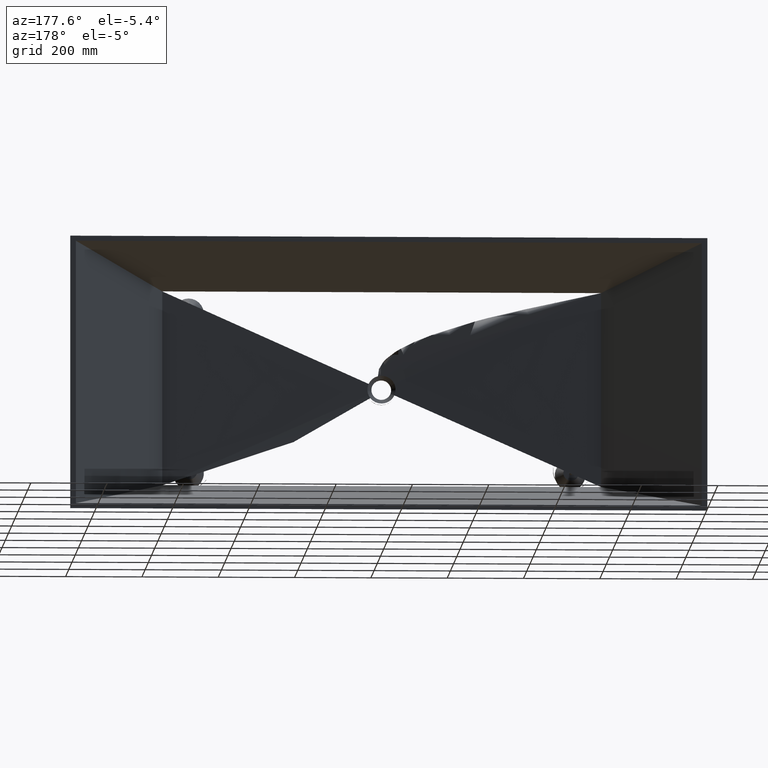
[diagram: clean part render]
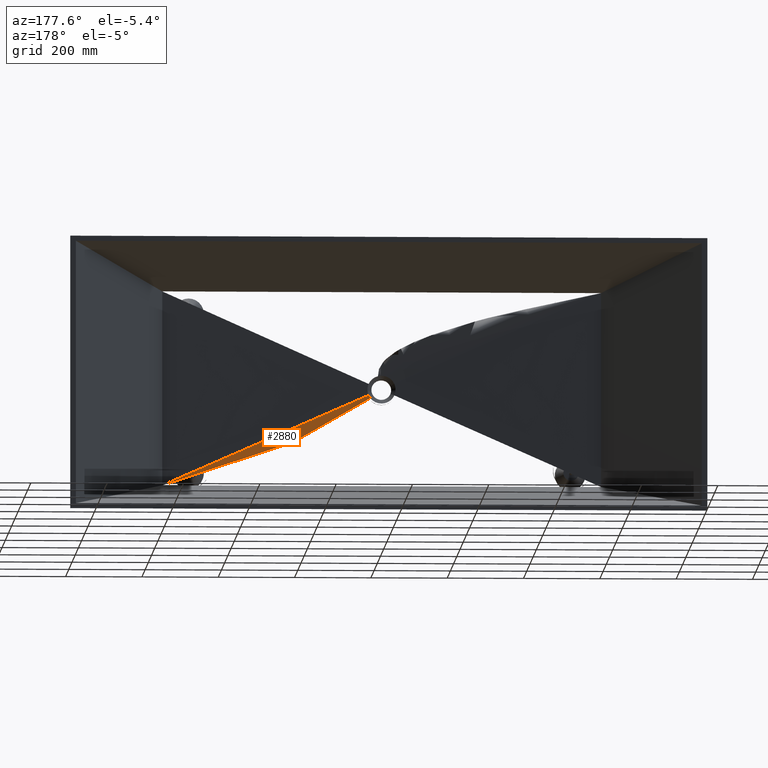
[diagram: same view with one face highlighted and labeled with its STEP entity id]
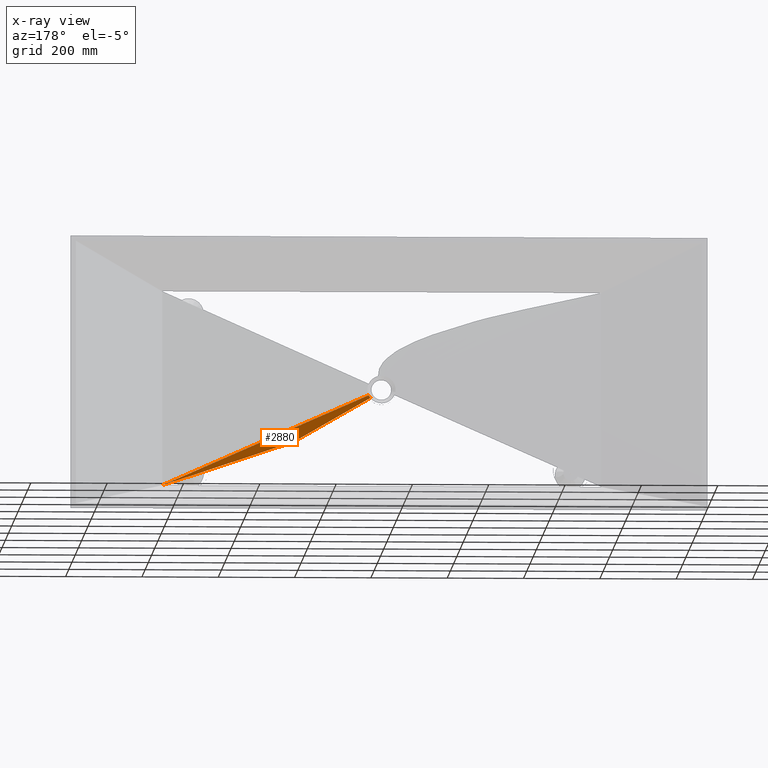
[diagram: x-ray of the same camera — body ghosted, the highlighted face saturated]
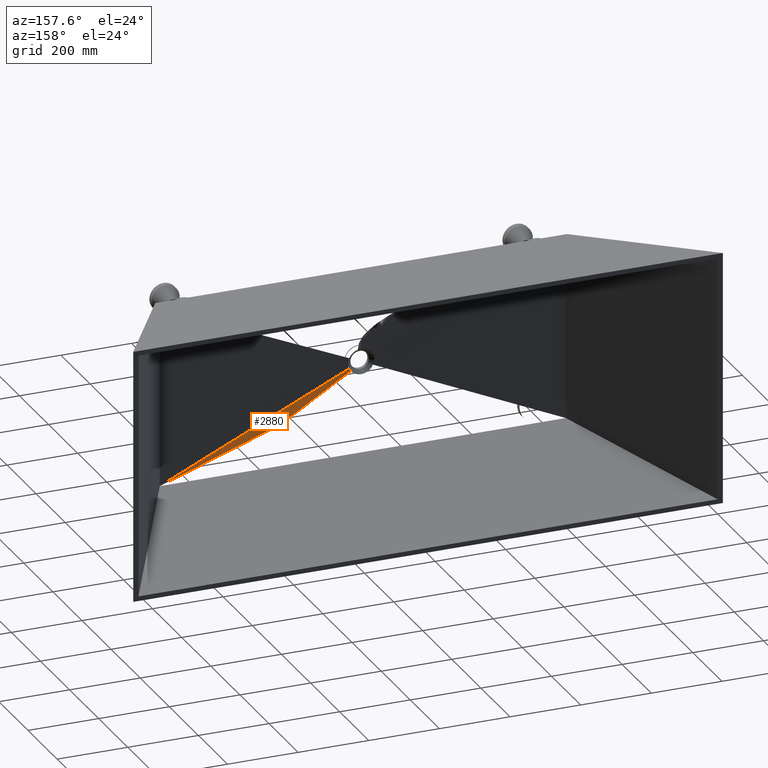
[diagram: same view with one face highlighted and labeled with its STEP entity id]
A machine part, auxiliary view. The second image highlights one B-rep face of the part: STEP entity #2880.
The next image is the same camera in x-ray: the body ghosted, the highlighted face saturated — about 0% of this face is hidden behind the body in this view.
A second angle (auxiliary view) of the same face is appended — the face is thin or edge-on in the first view.
In plain terms, the highlighted face is a freeform B-spline surface patch.
Its self-contained STEP definition (entity closure, byte-faithful):
#3 = VECTOR ( 'NONE', #7055, 1000.000000000000000 ) ;
#19 = CARTESIAN_POINT ( 'NONE',  ( 839.7902275691624300, -460.0000000000000600, -361.9009708081633200 ) ) ;
#36 = CARTESIAN_POINT ( 'NONE',  ( 1227.291666666668300, -448.0000000000000600, -599.9999999999996600 ) ) ;
#57 = CARTESIAN_POINT ( 'NONE',  ( 786.2661255632756400, -459.7831348520603600, -359.9437656676186100 ) ) ;
#84 = CARTESIAN_POINT ( 'NONE',  ( 786.4764197097281300, -459.7798139022385700, -360.4085599740050200 ) ) ;
#106 = CARTESIAN_POINT ( 'NONE',  ( 786.6960176936523800, -459.7762995391044600, -360.8684162147919800 ) ) ;
#127 = CARTESIAN_POINT ( 'NONE',  ( 787.7946876061801000, -459.7591575171467200, -363.0508660667292700 ) ) ;
#140 = CARTESIAN_POINT ( 'NONE',  ( 1246.710059227381200, -447.3986584636401700, -611.9315696683340800 ) ) ;
#151 = CARTESIAN_POINT ( 'NONE',  ( 788.8214790106709400, -459.7434923425655600, -364.7392265563996100 ) ) ;
#162 = CARTESIAN_POINT ( 'NONE',  ( 791.1022078576938800, -459.7097688032841300, -367.8857734826957000 ) ) ;
#167 = CARTESIAN_POINT ( 'NONE',  ( 839.0077442516670800, -459.9999999999999400, -362.7811239151816400 ) ) ;
#178 = CARTESIAN_POINT ( 'NONE',  ( 792.3577529762272900, -459.6914987369373800, -369.3553894277317800 ) ) ;
#191 = CARTESIAN_POINT ( 'NONE',  ( 795.0876168921823800, -459.6526312391480400, -372.0842114639852400 ) ) ;
#194 = CARTESIAN_POINT ( 'NONE',  ( 1203.333333333334800, -448.0000000000000600, -599.9999999999996600 ) ) ;
#263 = LINE ( 'NONE', #3039, #3 ) ;
#282 = CARTESIAN_POINT ( 'NONE',  ( 1221.590342456133800, -447.3986584636401700, -611.8874636165335200 ) ) ;
#303 = CARTESIAN_POINT ( 'NONE',  ( 796.5799377370595900, -459.6317816269593700, -373.3566142444592500 ) ) ;
#332 = CARTESIAN_POINT ( 'NONE',  ( 799.7390465898342900, -459.5898768446119200, -375.6409739413047600 ) ) ;
#338 = CARTESIAN_POINT ( 'NONE',  ( 837.2750106249481000, -459.9999999999999400, -364.4688653272797900 ) ) ;
#361 = CARTESIAN_POINT ( 'NONE',  ( 801.3880648954697100, -459.5690814824225800, -376.6448708311372700 ) ) ;
#370 = CARTESIAN_POINT ( 'NONE',  ( 1155.416666666668800, -448.0000000000000600, -599.9999999999996600 ) ) ;
#384 = CARTESIAN_POINT ( 'NONE',  ( 804.8351465061047100, -459.5299680696588200, -378.3933669265883300 ) ) ;
#389 = CARTESIAN_POINT ( 'NONE',  ( 1171.359316018685600, -447.3986584636401700, -611.8028878653894900 ) ) ;
#403 = CARTESIAN_POINT ( 'NONE',  ( 806.6379645229507100, -459.5116841034209800, -379.1384954000769200 ) ) ;
#468 = CARTESIAN_POINT ( 'NONE',  ( 812.2414424464973300, -459.4650499516656600, -380.9496055281155100 ) ) ;
#492 = CARTESIAN_POINT ( 'NONE',  ( 816.0594208771156000, -459.4470400777077000, -381.5518174344939000 ) ) ;
#521 = CARTESIAN_POINT ( 'NONE',  ( 823.9232058916991300, -459.4469691962475500, -381.5541713310439000 ) ) ;
#528 = ORIENTED_EDGE ( 'NONE', *, *, #3157, .T. ) ;
#563 = CARTESIAN_POINT ( 'NONE',  ( 836.3246564037236800, -459.9999999999999400, -365.2763393841118500 ) ) ;
#570 = CARTESIAN_POINT ( 'NONE',  ( 786.2661255632756400, -459.7831348520603600, -359.9437656676186100 ) ) ;
#576 = CARTESIAN_POINT ( 'NONE',  ( 827.7807534004799700, -459.4651716975324700, -380.9447686650119600 ) ) ;
#600 = CARTESIAN_POINT ( 'NONE',  ( 835.2448136375541000, -459.5274159953459000, -378.5276123047443700 ) ) ;
#609 = CARTESIAN_POINT ( 'NONE',  ( 1131.458333333335500, -448.0000000000000600, -599.9999999999996600 ) ) ;
#620 = CARTESIAN_POINT ( 'NONE',  ( 838.6834353953080400, -459.5688895387675100, -376.7844327962653800 ) ) ;
#633 = DIRECTION ( 'NONE',  ( 0.9139580911381105500, 0.01989632212499038700, -0.4053205447655964200 ) ) ;
#650 = CARTESIAN_POINT ( 'NONE',  ( 845.0257805664897400, -459.6531430245072400, -372.1927481825019300 ) ) ;
#678 = CARTESIAN_POINT ( 'NONE',  ( 847.7493262408919500, -459.6923484133240000, -369.4742337768624300 ) ) ;
#681 = CARTESIAN_POINT ( 'NONE',  ( 1119.383807601259600, -454.0000000000000000, -477.7702103275149700 ) ) ;
#752 = CARTESIAN_POINT ( 'NONE',  ( 1146.248011559701400, -447.3986584636401700, -611.7624238912305800 ) ) ;
#764 = CARTESIAN_POINT ( 'NONE',  ( 853.7238181717963200, -459.7831004621284600, -359.9668583472498500 ) ) ;
#784 = CARTESIAN_POINT ( 'NONE',  ( 834.2632990547095900, -459.9999999999999400, -366.7757352480975900 ) ) ;
#794 = CARTESIAN_POINT ( 'NONE',  ( 852.7137667090102000, -459.7657944614707000, -362.1981839419405000 ) ) ;
#810 = CARTESIAN_POINT ( 'NONE',  ( 851.4890122800393300, -459.7483591865324700, -364.3083304029599400 ) ) ;
#869 = CARTESIAN_POINT ( 'NONE',  ( 1083.541666666669000, -448.0000000000000600, -599.9999999999996600 ) ) ;
#897 = CARTESIAN_POINT ( 'NONE',  ( 1096.033453046757400, -447.3986584636401700, -611.6872864735255500 ) ) ;
#929 = CARTESIAN_POINT ( 'NONE',  ( 1322.085594678677100, -447.3986584636401700, -612.0672974234917100 ) ) ;
#995 = CARTESIAN_POINT ( 'NONE',  ( 833.1522410829995800, -459.9999999999998900, -367.4674851387704300 ) ) ;
#1045 = CARTESIAN_POINT ( 'NONE',  ( 1059.583333333335800, -448.0000000000000600, -599.9999999999996600 ) ) ;
#1180 = CARTESIAN_POINT ( 'NONE',  ( 1070.930201741124200, -447.3986584636401700, -611.6526216450226900 ) ) ;
#1248 = CARTESIAN_POINT ( 'NONE',  ( 830.7906953504149200, -459.9999999999999400, -368.6924086538442100 ) ) ;
#1388 = CARTESIAN_POINT ( 'NONE',  ( 1011.666666666669100, -448.0000000000000000, -599.9999999999996600 ) ) ;
#1419 = CARTESIAN_POINT ( 'NONE',  ( 1020.730686206827500, -447.3986584636401200, -611.5912385293162300 ) ) ;
#1447 = CARTESIAN_POINT ( 'NONE',  ( 829.5402363859159300, -460.0000000000000000, -369.2253794539482200 ) ) ;
#1473 = CARTESIAN_POINT ( 'NONE',  ( 987.7083333333358700, -448.0000000000000000, -599.9999999999996600 ) ) ;
#1477 = VECTOR ( 'NONE', #633, 1000.000000000000200 ) ;
#1493 = EDGE_CURVE ( 'NONE', #3438, #6595, #3553, .T. ) ;
#1569 = CARTESIAN_POINT ( 'NONE',  ( 995.6344205351257400, -447.3986584636401200, -611.5645304060020600 ) ) ;
#1571 = CARTESIAN_POINT ( 'NONE',  ( 841.1916496561193500, -459.9999999999999400, -360.1066179653129200 ) ) ;
#1596 = CARTESIAN_POINT ( 'NONE',  ( 826.9357242270020800, -460.0000000000000000, -370.0954348325330400 ) ) ;
#1677 = CARTESIAN_POINT ( 'NONE',  ( 939.7916666666694700, -448.0000000000000000, -599.9999999999995500 ) ) ;
#1701 = CARTESIAN_POINT ( 'NONE',  ( 945.4470804845037700, -447.3986584636401200, -611.5209303694956600 ) ) ;
#1805 = CARTESIAN_POINT ( 'NONE',  ( 825.5817995156430700, -459.9999999999997700, -370.4323346558327300 ) ) ;
#1817 = VERTEX_POINT ( 'NONE', #6882 ) ;
#1818 = LINE ( 'NONE', #2100, #2568 ) ;
#1880 = CARTESIAN_POINT ( 'NONE',  ( 915.8333333333362100, -447.9999999999999400, -599.9999999999995500 ) ) ;
#1900 = CARTESIAN_POINT ( 'NONE',  ( 920.3559996670667300, -447.3986584636400600, -611.5040477147171000 ) ) ;
#1953 = DIRECTION ( 'NONE',  ( -1.000000000000000000, 0.0000000000000000000, 0.0000000000000000000 ) ) ;
#2027 = CARTESIAN_POINT ( 'NONE',  ( 822.8184830776923500, -459.9999999999999400, -370.8846727817808600 ) ) ;
#2058 = CARTESIAN_POINT ( 'NONE',  ( 867.9166666666695800, -447.9999999999999400, -599.9999999999995500 ) ) ;
#2100 = CARTESIAN_POINT ( 'NONE',  ( 1395.000000000000000, -448.0000000000000000, -599.9999999999997700 ) ) ;
#2120 = CARTESIAN_POINT ( 'NONE',  ( 870.1766175838724800, -447.3986584636400600, -611.4813802394161300 ) ) ;
#2288 = CARTESIAN_POINT ( 'NONE',  ( 821.4093023200695100, -459.9999999999998900, -371.0000000000000000 ) ) ;
#2306 = CARTESIAN_POINT ( 'NONE',  ( 843.9583333333362100, -447.9999999999999400, -599.9999999999995500 ) ) ;
#2330 = CARTESIAN_POINT ( 'NONE',  ( 845.0883057460815700, -447.3986584636400600, -611.4756009855337900 ) ) ;
#2406 = CARTESIAN_POINT ( 'NONE',  ( 1395.000000000000000, -448.0000000000000000, -599.9999999999997700 ) ) ;
#2424 = EDGE_CURVE ( 'NONE', #5272, #1817, #1818, .T. ) ;
#2486 = CARTESIAN_POINT ( 'NONE',  ( 818.5906976799301400, -459.9999999999999400, -371.0000000000000000 ) ) ;
#2527 = CARTESIAN_POINT ( 'NONE',  ( 796.0416666666695800, -447.9999999999999400, -599.9999999999995500 ) ) ;
#2568 = VECTOR ( 'NONE', #1953, 1000.000000000000000 ) ;
#2611 = CARTESIAN_POINT ( 'NONE',  ( 794.9116942539244500, -447.3986584636400600, -611.4756009855337900 ) ) ;
#2635 = CARTESIAN_POINT ( 'NONE',  ( 817.1815169223069700, -459.9999999999998900, -370.8846727817808600 ) ) ;
#2770 = CARTESIAN_POINT ( 'NONE',  ( 772.0833333333361000, -447.9999999999999400, -599.9999999999996600 ) ) ;
#2790 = CARTESIAN_POINT ( 'NONE',  ( 769.8233824161334300, -447.3986584636400600, -611.4813802394162400 ) ) ;
#2837 = CARTESIAN_POINT ( 'NONE',  ( 814.4182004843565900, -459.9999999999998900, -370.4323346558328500 ) ) ;
#2856 = CARTESIAN_POINT ( 'NONE',  ( 724.1666666666694700, -448.0000000000000600, -599.9999999999996600 ) ) ;
#2880 = ADVANCED_FACE ( 'NONE', ( #6926 ), #5246, .F. ) ;
#2900 = CARTESIAN_POINT ( 'NONE',  ( 719.6440003329393000, -447.3986584636401700, -611.5040477147172200 ) ) ;
#2994 = CARTESIAN_POINT ( 'NONE',  ( 813.0642757729976900, -459.9999999999999400, -370.0954348325331000 ) ) ;
#3018 = CARTESIAN_POINT ( 'NONE',  ( 700.2083333333361000, -448.0000000000000600, -599.9999999999996600 ) ) ;
#3039 = CARTESIAN_POINT ( 'NONE',  ( 520.6161923987405100, -454.0000000000000000, -477.7702103275149700 ) ) ;
#3041 = CARTESIAN_POINT ( 'NONE',  ( 694.5529195155021400, -447.3986584636401700, -611.5209303694957700 ) ) ;
#3157 = EDGE_CURVE ( 'NONE', #1817, #6595, #263, .T. ) ;
#3187 = CARTESIAN_POINT ( 'NONE',  ( 810.4597636140838400, -459.9999999999999400, -369.2253794539482800 ) ) ;
#3288 = CARTESIAN_POINT ( 'NONE',  ( 652.2916666666693600, -448.0000000000000600, -599.9999999999996600 ) ) ;
#3339 = CARTESIAN_POINT ( 'NONE',  ( 644.3655794648797200, -447.3986584636401700, -611.5645304060020600 ) ) ;
#3366 = CARTESIAN_POINT ( 'NONE',  ( 809.2093046495850800, -459.9999999999999400, -368.6924086538442700 ) ) ;
#3405 = CARTESIAN_POINT ( 'NONE',  ( 628.3333333333358700, -448.0000000000000600, -599.9999999999996600 ) ) ;
#3438 = VERTEX_POINT ( 'NONE', #4720 ) ;
#3544 = CARTESIAN_POINT ( 'NONE',  ( 619.2693137931777300, -447.3986584636401700, -611.5912385293162300 ) ) ;
#3553 = B_SPLINE_CURVE_WITH_KNOTS ( 'NONE', 3,
 ( #764, #794, #810, #678, #650, #620, #600, #576, #521, #492, #468, #403, #384, #361, #332, #303, #191, #178, #162, #151, #127, #106, #84, #57 ),
 .UNSPECIFIED., .F., .F.,
 ( 4, 2, 2, 2, 2, 2, 2, 2, 2, 2, 2, 4 ),
 ( 0.0000000000000000000, 0.08655120627722633100, 0.2242693432421089500, 0.3619874802069915600, 0.4997056171718738900, 0.6374237541367565600, 0.7062828226191976100, 0.7751418911016391100, 0.8440009595840802800, 0.9128600280665214500, 0.9817190965489629400, 0.9998218624259975800 ),
 .UNSPECIFIED. ) ;
#3562 = CARTESIAN_POINT ( 'NONE',  ( 806.8477589170001900, -459.9999999999999400, -367.4674851387703700 ) ) ;
#3692 = CARTESIAN_POINT ( 'NONE',  ( 580.4166666666690200, -448.0000000000000600, -599.9999999999996600 ) ) ;
#3777 = CARTESIAN_POINT ( 'NONE',  ( 569.0697982588808400, -447.3986584636401700, -611.6526216450226900 ) ) ;
#3801 = CARTESIAN_POINT ( 'NONE',  ( 805.7367009452901800, -459.9999999999999400, -366.7757352480976500 ) ) ;
#3825 = CARTESIAN_POINT ( 'NONE',  ( 556.4583333333356400, -448.0000000000000600, -599.9999999999996600 ) ) ;
#3877 = CARTESIAN_POINT ( 'NONE',  ( 543.9665469532477600, -447.3986584636401700, -611.6872864735255500 ) ) ;
#3904 = CARTESIAN_POINT ( 'NONE',  ( 803.6753435962763200, -459.9999999999999400, -365.2763393841119100 ) ) ;
#3947 = CARTESIAN_POINT ( 'NONE',  ( 508.5416666666686800, -448.0000000000000600, -599.9999999999996600 ) ) ;
#3990 = CARTESIAN_POINT ( 'NONE',  ( 493.7519884403029100, -447.3986584636401700, -611.7624238912305800 ) ) ;
#4011 = CARTESIAN_POINT ( 'NONE',  ( 802.7249893750520200, -459.9999999999999400, -364.4688653272797900 ) ) ;
#4044 = CARTESIAN_POINT ( 'NONE',  ( 843.9603234042125500, -460.0000000000000000, -355.1058825531725300 ) ) ;
#4063 = CARTESIAN_POINT ( 'NONE',  ( 1406.500000000000000, -448.0000000000000000, -599.9999999999997700 ) ) ;
#4064 = CARTESIAN_POINT ( 'NONE',  ( 484.5833333333352500, -448.0000000000000600, -599.9999999999996600 ) ) ;
#4079 = CARTESIAN_POINT ( 'NONE',  ( 1434.689872782291300, -447.3986584636401200, -612.2720837359139500 ) ) ;
#4105 = CARTESIAN_POINT ( 'NONE',  ( 468.6406839813185500, -447.3986584636401700, -611.8028878653894900 ) ) ;
#4212 = CARTESIAN_POINT ( 'NONE',  ( 800.9922557483330400, -460.0000000000000600, -362.7811239151815800 ) ) ;
#4235 = CARTESIAN_POINT ( 'NONE',  ( 436.6666666666683300, -448.0000000000000600, -599.9999999999996600 ) ) ;
#4248 = CARTESIAN_POINT ( 'NONE',  ( 418.4096575438696300, -447.3986584636401700, -611.8874636165335200 ) ) ;
#4373 = CARTESIAN_POINT ( 'NONE',  ( 800.2097724308378000, -460.0000000000000000, -361.9009708081632700 ) ) ;
#4400 = CARTESIAN_POINT ( 'NONE',  ( 412.7083333333347900, -448.0000000000000600, -599.9999999999996600 ) ) ;
#4411 = CARTESIAN_POINT ( 'NONE',  ( 1275.208333333334400, -448.0000000000000600, -599.9999999999996600 ) ) ;
#4418 = CARTESIAN_POINT ( 'NONE',  ( 393.2899407726218900, -447.3986584636401700, -611.9315696683340800 ) ) ;
#4439 = CARTESIAN_POINT ( 'NONE',  ( 798.8083503438806500, -460.0000000000000600, -360.1066179653128100 ) ) ;
#4462 = CARTESIAN_POINT ( 'NONE',  ( 364.7916666666677100, -448.0000000000000600, -599.9999999999997700 ) ) ;
#4483 = CARTESIAN_POINT ( 'NONE',  ( 343.0423117193117300, -447.3986584636401700, -612.0214879096084800 ) ) ;
#4553 = CARTESIAN_POINT ( 'NONE',  ( 798.1892941554415300, -459.9999999999999400, -359.1924716219085100 ) ) ;
#4575 = CARTESIAN_POINT ( 'NONE',  ( 340.8333333333342200, -448.0000000000000000, -599.9999999999997700 ) ) ;
#4609 = CARTESIAN_POINT ( 'NONE',  ( 317.9144053213248600, -447.3986584636401200, -612.0672974234918200 ) ) ;
#4611 = CARTESIAN_POINT ( 'NONE',  ( 843.8960873369814000, -460.0000000000000000, -355.2507285871250800 ) ) ;
#4613 = CARTESIAN_POINT ( 'NONE',  ( 797.1021018472765700, -460.0000000000001700, -357.3620144136799000 ) ) ;
#4720 = CARTESIAN_POINT ( 'NONE',  ( 853.7238181717963200, -459.7831004621284600, -359.9668583472498500 ) ) ;
#4727 = CARTESIAN_POINT ( 'NONE',  ( 292.9166666666671400, -448.0000000000000000, -599.9999999999997700 ) ) ;
#4760 = CARTESIAN_POINT ( 'NONE',  ( 267.6510296498522100, -447.3986584636401200, -612.1590249193116100 ) ) ;
#4850 = CARTESIAN_POINT ( 'NONE',  ( 796.6338602176753100, -459.9999999999998300, -356.4457083672336400 ) ) ;
#4885 = LINE ( 'NONE', #681, #1477 ) ;
#4940 = CARTESIAN_POINT ( 'NONE',  ( 268.9583333333336600, -448.0000000000000000, -599.9999999999997700 ) ) ;
#4975 = CARTESIAN_POINT ( 'NONE',  ( 242.5155656636556500, -447.3986584636401200, -612.2049426597903900 ) ) ;
#5000 = CARTESIAN_POINT ( 'NONE',  ( 796.2323847974807900, -460.0000000000000000, -355.5404206550301800 ) ) ;
#5026 = CARTESIAN_POINT ( 'NONE',  ( 245.0000000000001100, -448.0000000000000000, -599.9999999999997700 ) ) ;
#5049 = CARTESIAN_POINT ( 'NONE',  ( 217.3767559028806000, -447.3986584636401200, -612.2503082517657700 ) ) ;
#5080 = CARTESIAN_POINT ( 'NONE',  ( 796.1681487302496400, -460.0000000000000000, -355.3955746210776300 ) ) ;
#5224 = CARTESIAN_POINT ( 'NONE',  ( 1402.666666666666700, -448.0000000000000000, -599.9999999999997700 ) ) ;
#5225 = CARTESIAN_POINT ( 'NONE',  ( 241.1666666666667400, -448.0000000000000000, -599.9999999999997700 ) ) ;
#5246 = B_SPLINE_SURFACE_WITH_KNOTS ( 'NONE', 3, 1, ( 
 ( #6033, #6687, #5630 ),
 ( #5496, #5425, #5409 ),
 ( #5377, #5225, #5080 ),
 ( #5049, #5026, #5000 ),
 ( #4975, #4940, #4850 ),
 ( #4760, #4727, #4613 ),
 ( #4609, #4575, #4553 ),
 ( #4483, #4462, #4439 ),
 ( #4418, #4400, #4373 ),
 ( #4248, #4235, #4212 ),
 ( #4105, #4064, #4011 ),
 ( #3990, #3947, #3904 ),
 ( #3877, #3825, #3801 ),
 ( #3777, #3692, #3562 ),
 ( #3544, #3405, #3366 ),
 ( #3339, #3288, #3187 ),
 ( #3041, #3018, #2994 ),
 ( #2900, #2856, #2837 ),
 ( #2790, #2770, #2635 ),
 ( #2611, #2527, #2486 ),
 ( #2330, #2306, #2288 ),
 ( #2120, #2058, #2027 ),
 ( #1900, #1880, #1805 ),
 ( #1701, #1677, #1596 ),
 ( #1569, #1473, #1447 ),
 ( #1419, #1388, #1248 ),
 ( #1180, #1045, #995 ),
 ( #897, #869, #784 ),
 ( #752, #609, #563 ),
 ( #389, #370, #338 ),
 ( #282, #194, #167 ),
 ( #140, #36, #19 ),
 ( #5622, #4411, #1571 ),
 ( #929, #7515, #7498 ),
 ( #7029, #7006, #6985 ),
 ( #6940, #6502, #6475 ),
 ( #6432, #6379, #5902 ),
 ( #5853, #5824, #5800 ),
 ( #5285, #5224, #4611 ),
 ( #4079, #4063, #4044 ) ),
 .UNSPECIFIED., .F., .F., .F.,
 ( 4, 3, 2, 2, 2, 2, 2, 2, 2, 2, 2, 2, 2, 2, 2, 2, 2, 3, 4 ),
 ( 2, 1, 2 ),
 ( -0.01000000000000000000, 0.0000000000000000000, 0.06250000000000000000, 0.1250000000000000000, 0.1875000000000000000, 0.2500000000000000000, 0.3125000000000000000, 0.3750000000000000000, 0.4375000000000000000, 0.5000000000000000000, 0.5625000000000000000, 0.6250000000000000000, 0.6875000000000000000, 0.7500000000000000000, 0.8125000000000000000, 0.8750000000000000000, 0.9375000000000000000, 1.000000000000000000, 1.010000000000000000 ),
 ( -0.05011179469665613700, 0.0000000000000000000, 1.000000000000000000 ),
 .UNSPECIFIED. ) ;
#5272 = VERTEX_POINT ( 'NONE', #2406 ) ;
#5285 = CARTESIAN_POINT ( 'NONE',  ( 1430.667663220567400, -447.3986584636401200, -612.2648252411978500 ) ) ;
#5377 = CARTESIAN_POINT ( 'NONE',  ( 213.3545463411566100, -447.3986584636401200, -612.2575667464817600 ) ) ;
#5409 = CARTESIAN_POINT ( 'NONE',  ( 796.1039126630184900, -460.0000000000000000, -355.2507285871250800 ) ) ;
#5425 = CARTESIAN_POINT ( 'NONE',  ( 237.3333333333334000, -448.0000000000000000, -599.9999999999997700 ) ) ;
#5496 = CARTESIAN_POINT ( 'NONE',  ( 209.3323367794326100, -447.3986584636401200, -612.2648252411978500 ) ) ;
#5622 = CARTESIAN_POINT ( 'NONE',  ( 1296.957688280690500, -447.3986584636401700, -612.0214879096083700 ) ) ;
#5630 = CARTESIAN_POINT ( 'NONE',  ( 796.0396765957873400, -460.0000000000000000, -355.1058825531725300 ) ) ;
#5750 = EDGE_LOOP ( 'NONE', ( #7294, #6213, #528, #6935 ) ) ;
#5800 = CARTESIAN_POINT ( 'NONE',  ( 843.8318512697502500, -460.0000000000000000, -355.3955746210776300 ) ) ;
#5824 = CARTESIAN_POINT ( 'NONE',  ( 1398.833333333333500, -448.0000000000000000, -599.9999999999997700 ) ) ;
#5853 = CARTESIAN_POINT ( 'NONE',  ( 1426.645453658843500, -447.3986584636401200, -612.2575667464817600 ) ) ;
#5902 = CARTESIAN_POINT ( 'NONE',  ( 843.7676152025191000, -460.0000000000000000, -355.5404206550301800 ) ) ;
#6033 = CARTESIAN_POINT ( 'NONE',  ( 205.3101272177086100, -447.3986584636401200, -612.2720837359139500 ) ) ;
#6213 = ORIENTED_EDGE ( 'NONE', *, *, #2424, .T. ) ;
#6379 = CARTESIAN_POINT ( 'NONE',  ( 1395.000000000000000, -448.0000000000000000, -599.9999999999997700 ) ) ;
#6432 = CARTESIAN_POINT ( 'NONE',  ( 1422.623244097119600, -447.3986584636401200, -612.2503082517657700 ) ) ;
#6475 = CARTESIAN_POINT ( 'NONE',  ( 843.3661397823244700, -460.0000000000001100, -356.4457083672335800 ) ) ;
#6502 = CARTESIAN_POINT ( 'NONE',  ( 1371.041666666667000, -448.0000000000000600, -599.9999999999997700 ) ) ;
#6551 = EDGE_CURVE ( 'NONE', #3438, #5272, #4885, .T. ) ;
#6595 = VERTEX_POINT ( 'NONE', #570 ) ;
#6687 = CARTESIAN_POINT ( 'NONE',  ( 233.5000000000000300, -448.0000000000000000, -599.9999999999997700 ) ) ;
#6882 = CARTESIAN_POINT ( 'NONE',  ( 245.0000000000000000, -448.0000000000000000, -599.9999999999997700 ) ) ;
#6926 = FACE_OUTER_BOUND ( 'NONE', #5750, .T. ) ;
#6935 = ORIENTED_EDGE ( 'NONE', *, *, #1493, .F. ) ;
#6940 = CARTESIAN_POINT ( 'NONE',  ( 1397.484434336345000, -447.3986584636401700, -612.2049426597903900 ) ) ;
#6985 = CARTESIAN_POINT ( 'NONE',  ( 842.8978981527235400, -459.9999999999999400, -357.3620144136799000 ) ) ;
#7006 = CARTESIAN_POINT ( 'NONE',  ( 1347.083333333333900, -448.0000000000000600, -599.9999999999997700 ) ) ;
#7029 = CARTESIAN_POINT ( 'NONE',  ( 1372.348970350148900, -447.3986584636401700, -612.1590249193116100 ) ) ;
#7055 = DIRECTION ( 'NONE',  ( 0.9139580911381104400, -0.01989632212499039100, 0.4053205447655965400 ) ) ;
#7294 = ORIENTED_EDGE ( 'NONE', *, *, #6551, .T. ) ;
#7498 = CARTESIAN_POINT ( 'NONE',  ( 841.8107058445582400, -460.0000000000000600, -359.1924716219086200 ) ) ;
#7515 = CARTESIAN_POINT ( 'NONE',  ( 1299.166666666667700, -448.0000000000000600, -599.9999999999996600 ) ) ;